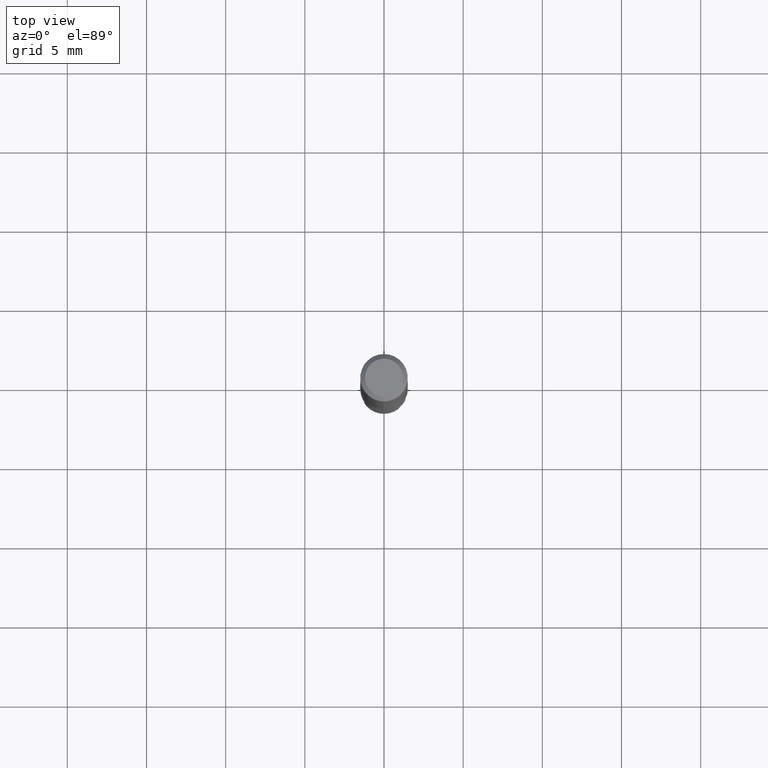
[diagram: clean part render]
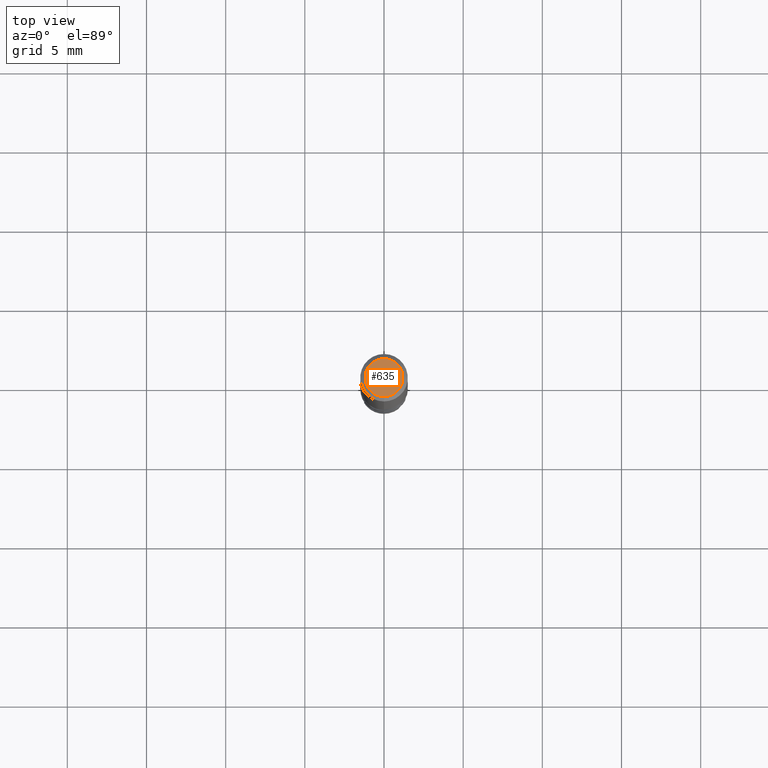
[diagram: same view with one face highlighted and labeled with its STEP entity id]
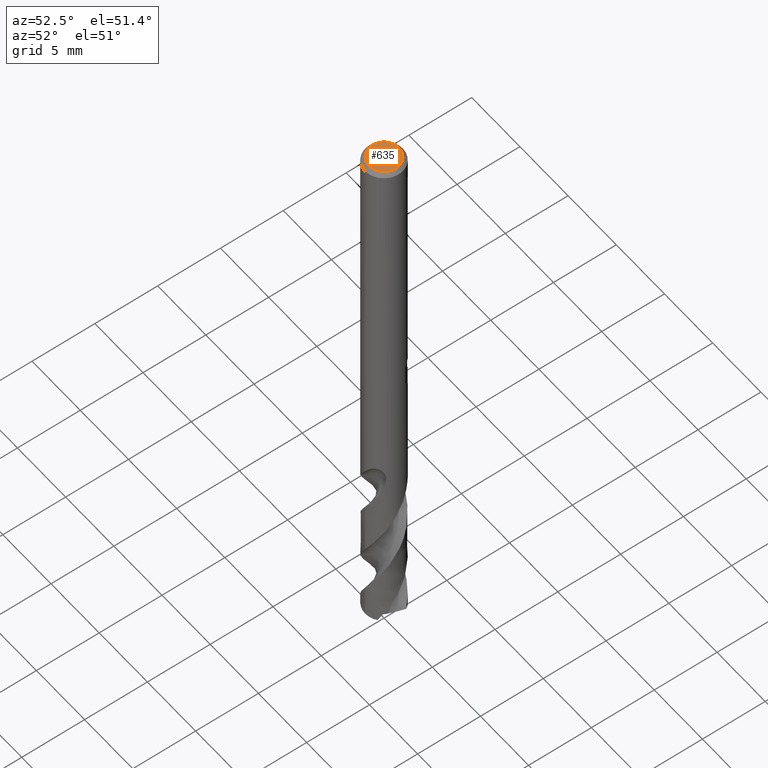
[diagram: same view with one face highlighted and labeled with its STEP entity id]
A machine part, top view. The second image highlights one B-rep face of the part: STEP entity #635.
A second angle (auxiliary view) of the same face is appended — the face is thin or edge-on in the first view.
In plain terms, the highlighted planar face has unit normal (-0, 0, 1).
Its self-contained STEP definition (entity closure, byte-faithful):
#317=EDGE_CURVE('',#363,#319,#812,.T.);
#319=VERTEX_POINT('',#814);
#363=VERTEX_POINT('',#863);
#635=ADVANCED_FACE('',(#1159),#1160,.T.);
#653=EDGE_CURVE('',#319,#363,#1180,.T.);
#812=CIRCLE('',#1706,1.2);
#814=CARTESIAN_POINT('',(1.46952762458685E-016,-1.2,0.0));
#863=CARTESIAN_POINT('',(0.0,1.2,0.0));
#1159=FACE_OUTER_BOUND('',#4656,.T.);
#1160=PLANE('',#4657);
#1180=CIRCLE('',#5256,1.2);
#1706=AXIS2_PLACEMENT_3D('',#6363,#6364,#6365);
#4656=EDGE_LOOP('',(#6723,#6724));
#4657=AXIS2_PLACEMENT_3D('',#6725,#6726,#6727);
#5256=AXIS2_PLACEMENT_3D('',#6741,#6742,#6743);
#6363=CARTESIAN_POINT('',(0.0,0.0,0.0));
#6364=DIRECTION('',(0.0,0.0,-1.0));
#6365=DIRECTION('',(0.0,1.0,0.0));
#6723=ORIENTED_EDGE('',*,*,#317,.F.);
#6724=ORIENTED_EDGE('',*,*,#653,.F.);
#6725=CARTESIAN_POINT('',(0.0,0.6,0.0));
#6726=DIRECTION('',(-0.0,0.0,1.0));
#6727=DIRECTION('',(0.0,-1.0,0.0));
#6741=CARTESIAN_POINT('',(0.0,0.0,0.0));
#6742=DIRECTION('',(0.0,0.0,-1.0));
#6743=DIRECTION('',(0.0,1.0,0.0));